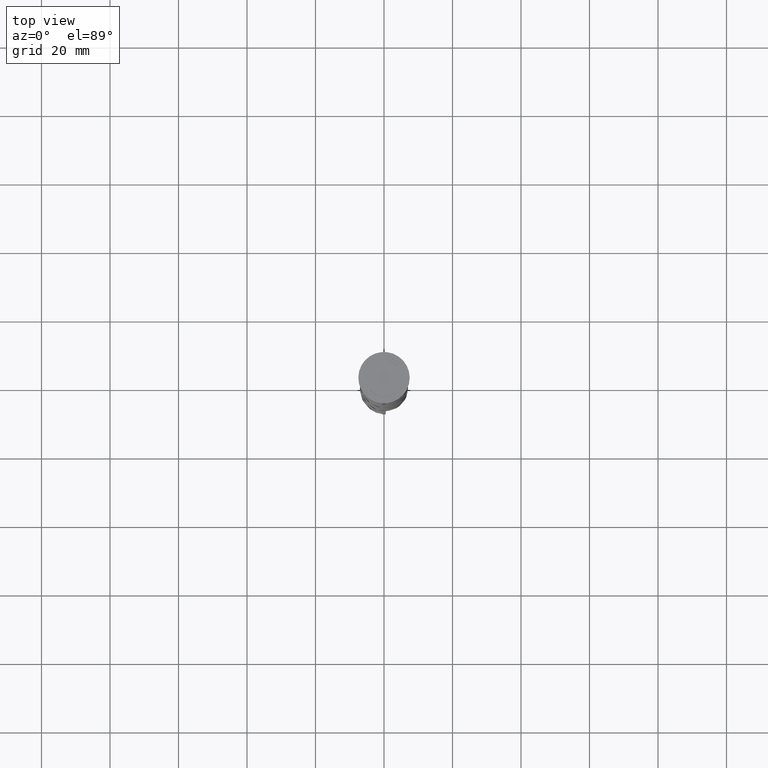
[diagram: clean part render]
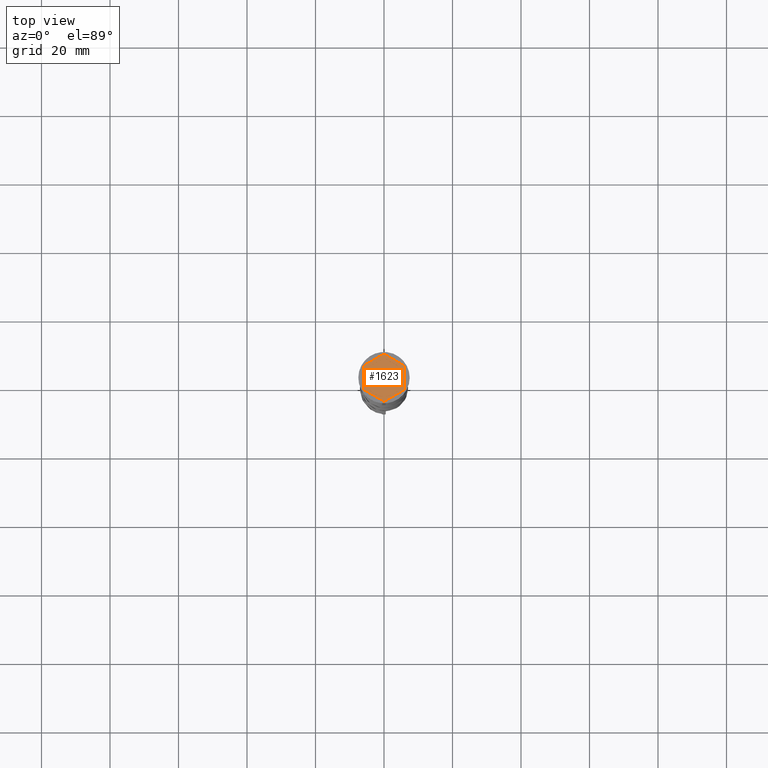
[diagram: same view with one face highlighted and labeled with its STEP entity id]
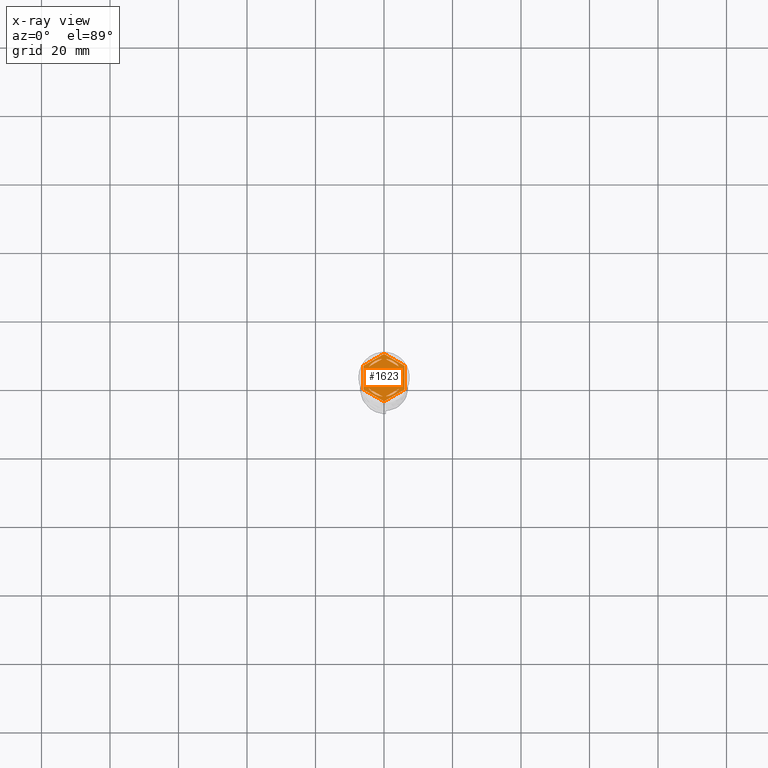
[diagram: x-ray of the same camera — body ghosted, the highlighted face saturated]
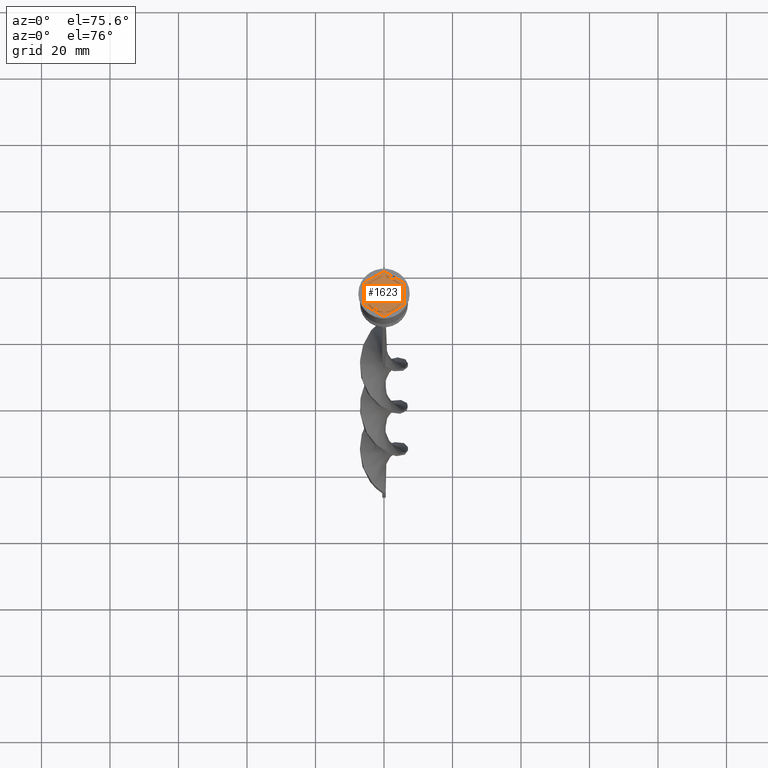
[diagram: same view with one face highlighted and labeled with its STEP entity id]
A machine part, top view. The second image highlights one B-rep face of the part: STEP entity #1623.
The next image is the same camera in x-ray: the body ghosted, the highlighted face saturated — about 0% of this face is hidden behind the body in this view.
A second angle (auxiliary view) of the same face is appended — the face is thin or edge-on in the first view.
In plain terms, the highlighted planar face has unit normal (0, 0, 1).
Its self-contained STEP definition (entity closure, byte-faithful):
#83 = DIRECTION ( 'NONE',  ( 0.000000000000000000, 0.000000000000000000, 1.000000000000000000 ) ) ;
#88 = VECTOR ( 'NONE', #759, 1000.000000000000227 ) ;
#96 = CARTESIAN_POINT ( 'NONE',  ( 0.000000000000000000, 6.928203230275506996, -1.000000000000000000 ) ) ;
#113 = LINE ( 'NONE', #2879, #1140 ) ;
#315 = ORIENTED_EDGE ( 'NONE', *, *, #1241, .F. ) ;
#327 = CARTESIAN_POINT ( 'NONE',  ( -5.000000000000000888, -2.291287847477921247, -1.000000000000000888 ) ) ;
#328 = AXIS2_PLACEMENT_3D ( 'NONE', #2137, #334, #2746 ) ;
#334 = DIRECTION ( 'NONE',  ( 0.000000000000000000, 0.000000000000000000, 1.000000000000000000 ) ) ;
#364 = ORIENTED_EDGE ( 'NONE', *, *, #1953, .F. ) ;
#418 = CARTESIAN_POINT ( 'NONE',  ( -0.5156865167015569629, 5.475770942661155161, -1.000000000000000888 ) ) ;
#425 = EDGE_CURVE ( 'NONE', #3022, #2754, #3845, .T. ) ;
#456 = AXIS2_PLACEMENT_3D ( 'NONE', #2052, #2962, #1470 ) ;
#467 = ORIENTED_EDGE ( 'NONE', *, *, #3056, .T. ) ;
#472 = CARTESIAN_POINT ( 'NONE',  ( -5.500000000000001776, 0.000000000000000000, -1.000000000000000000 ) ) ;
#479 = ORIENTED_EDGE ( 'NONE', *, *, #1861, .F. ) ;
#485 = CARTESIAN_POINT ( 'NONE',  ( 4.484313483298445036, -3.184483095183233026, -1.000000000000000888 ) ) ;
#519 = CARTESIAN_POINT ( 'NONE',  ( -6.000000000000000000, 3.464101615137752166, -1.000000000000000000 ) ) ;
#537 = LINE ( 'NONE', #2943, #788 ) ;
#575 = AXIS2_PLACEMENT_3D ( 'NONE', #2817, #1293, #2191 ) ;
#601 = CARTESIAN_POINT ( 'NONE',  ( 4.999999999999999112, -2.886751345948130432, -1.000000000000000888 ) ) ;
#606 = CARTESIAN_POINT ( 'NONE',  ( 0.000000000000000000, 0.000000000000000000, -1.000000000000000000 ) ) ;
#646 = EDGE_CURVE ( 'NONE', #3760, #3652, #2175, .T. ) ;
#665 = CARTESIAN_POINT ( 'NONE',  ( 0.5156865167015596274, 5.475770942661155161, -1.000000000000000888 ) ) ;
#667 = VERTEX_POINT ( 'NONE', #1682 ) ;
#720 = EDGE_LOOP ( 'NONE', ( #479, #1884 ) ) ;
#745 = LINE ( 'NONE', #1689, #1646 ) ;
#759 = DIRECTION ( 'NONE',  ( 0.8660254037844385966, 0.5000000000000000000, 0.000000000000000000 ) ) ;
#788 = VECTOR ( 'NONE', #1596, 1000.000000000000114 ) ;
#801 = ORIENTED_EDGE ( 'NONE', *, *, #2931, .T. ) ;
#819 = FACE_BOUND ( 'NONE', #1038, .T. ) ;
#882 = DIRECTION ( 'NONE',  ( 0.8660254037844388186, -0.4999999999999997224, 0.000000000000000000 ) ) ;
#910 = VERTEX_POINT ( 'NONE', #1490 ) ;
#958 = CARTESIAN_POINT ( 'NONE',  ( -6.000000000000000000, 3.464101615137752166, -1.000000000000000000 ) ) ;
#959 = CARTESIAN_POINT ( 'NONE',  ( 0.000000000000000000, 0.000000000000000000, -1.000000000000000000 ) ) ;
#962 = CIRCLE ( 'NONE', #2778, 5.500000000000001776 ) ;
#1023 = DIRECTION ( 'NONE',  ( 2.503857664561932376E-16, 1.000000000000000000, 0.000000000000000000 ) ) ;
#1030 = AXIS2_PLACEMENT_3D ( 'NONE', #1592, #2180, #2424 ) ;
#1038 = EDGE_LOOP ( 'NONE', ( #2414, #1264, #1797 ) ) ;
#1044 = EDGE_LOOP ( 'NONE', ( #2678, #1800 ) ) ;
#1057 = EDGE_LOOP ( 'NONE', ( #1359, #364 ) ) ;
#1058 = EDGE_CURVE ( 'NONE', #2228, #2781, #1898, .T. ) ;
#1071 = CARTESIAN_POINT ( 'NONE',  ( -4.280685092543093048E-16, -6.928203230275507885, -1.000000000000000000 ) ) ;
#1076 = CARTESIAN_POINT ( 'NONE',  ( -6.000000000000000000, -3.464101615137755719, -1.000000000000000000 ) ) ;
#1102 = EDGE_CURVE ( 'NONE', #2781, #2228, #537, .T. ) ;
#1140 = VECTOR ( 'NONE', #1023, 1000.000000000000000 ) ;
#1142 = FACE_OUTER_BOUND ( 'NONE', #2878, .T. ) ;
#1154 = CARTESIAN_POINT ( 'NONE',  ( 5.000000000000000888, 2.886751345948130876, -1.000000000000000888 ) ) ;
#1172 = VERTEX_POINT ( 'NONE', #3334 ) ;
#1181 = FACE_BOUND ( 'NONE', #1057, .T. ) ;
#1210 = CARTESIAN_POINT ( 'NONE',  ( 4.999999999999999112, -2.291287847477924355, -1.000000000000000888 ) ) ;
#1215 = CARTESIAN_POINT ( 'NONE',  ( -6.000000000000000000, -3.464101615137755719, -1.000000000000000000 ) ) ;
#1241 = EDGE_CURVE ( 'NONE', #2754, #3022, #2788, .T. ) ;
#1264 = ORIENTED_EDGE ( 'NONE', *, *, #3881, .F. ) ;
#1293 = DIRECTION ( 'NONE',  ( 0.000000000000000000, 0.000000000000000000, 1.000000000000000000 ) ) ;
#1307 = VERTEX_POINT ( 'NONE', #1076 ) ;
#1346 = VERTEX_POINT ( 'NONE', #418 ) ;
#1354 = CARTESIAN_POINT ( 'NONE',  ( -5.000000000000000888, -2.886751345948129099, -1.000000000000000888 ) ) ;
#1359 = ORIENTED_EDGE ( 'NONE', *, *, #2449, .F. ) ;
#1377 = EDGE_CURVE ( 'NONE', #3385, #1346, #745, .T. ) ;
#1379 = CARTESIAN_POINT ( 'NONE',  ( -4.484313483298445036, 3.184483095183233470, -1.000000000000000888 ) ) ;
#1425 = DIRECTION ( 'NONE',  ( 1.000000000000000000, 0.000000000000000000, -0.000000000000000000 ) ) ;
#1445 = VECTOR ( 'NONE', #882, 1000.000000000000114 ) ;
#1467 = FACE_BOUND ( 'NONE', #3306, .T. ) ;
#1470 = DIRECTION ( 'NONE',  ( 1.000000000000000000, 0.000000000000000000, 0.000000000000000000 ) ) ;
#1482 = VERTEX_POINT ( 'NONE', #2224 ) ;
#1490 = CARTESIAN_POINT ( 'NONE',  ( -4.484313483298445036, -3.184483095183233470, -1.000000000000000888 ) ) ;
#1540 = CARTESIAN_POINT ( 'NONE',  ( 6.000000000000000000, 3.464101615137753942, -1.000000000000000000 ) ) ;
#1592 = CARTESIAN_POINT ( 'NONE',  ( 0.000000000000000000, 0.000000000000000000, -1.000000000000000000 ) ) ;
#1596 = DIRECTION ( 'NONE',  ( -0.8660254037844387076, -0.4999999999999997224, 0.000000000000000000 ) ) ;
#1623 = ADVANCED_FACE ( 'NONE', ( #1467, #3505, #2375, #1181, #819, #3583, #1142 ), #3288, .T. ) ;
#1646 = VECTOR ( 'NONE', #2586, 1000.000000000000000 ) ;
#1653 = LINE ( 'NONE', #1354, #2924 ) ;
#1655 = ORIENTED_EDGE ( 'NONE', *, *, #2695, .T. ) ;
#1682 = CARTESIAN_POINT ( 'NONE',  ( -5.000000000000000888, 2.291287847477921247, -1.000000000000000888 ) ) ;
#1689 = CARTESIAN_POINT ( 'NONE',  ( 4.336808689942017736E-16, 5.773502691896259087, -1.000000000000000888 ) ) ;
#1693 = EDGE_CURVE ( 'NONE', #3863, #2972, #2981, .T. ) ;
#1717 = LINE ( 'NONE', #1540, #3035 ) ;
#1794 = DIRECTION ( 'NONE',  ( 0.000000000000000000, 1.000000000000000000, 0.000000000000000000 ) ) ;
#1795 = EDGE_CURVE ( 'NONE', #3652, #1307, #1886, .T. ) ;
#1797 = ORIENTED_EDGE ( 'NONE', *, *, #2497, .F. ) ;
#1798 = DIRECTION ( 'NONE',  ( -3.004629197474317076E-16, -1.000000000000000000, 0.000000000000000000 ) ) ;
#1800 = ORIENTED_EDGE ( 'NONE', *, *, #3088, .F. ) ;
#1858 = CARTESIAN_POINT ( 'NONE',  ( 0.000000000000000000, 6.928203230275506996, -1.000000000000000000 ) ) ;
#1861 = EDGE_CURVE ( 'NONE', #1346, #3385, #2015, .T. ) ;
#1884 = ORIENTED_EDGE ( 'NONE', *, *, #1377, .F. ) ;
#1886 = LINE ( 'NONE', #958, #1903 ) ;
#1892 = VECTOR ( 'NONE', #3769, 1000.000000000000114 ) ;
#1898 = CIRCLE ( 'NONE', #456, 5.500000000000001776 ) ;
#1903 = VECTOR ( 'NONE', #2401, 1000.000000000000000 ) ;
#1910 = ORIENTED_EDGE ( 'NONE', *, *, #2067, .T. ) ;
#1948 = ORIENTED_EDGE ( 'NONE', *, *, #1102, .F. ) ;
#1953 = EDGE_CURVE ( 'NONE', #2942, #910, #1653, .T. ) ;
#1955 = VECTOR ( 'NONE', #3703, 1000.000000000000227 ) ;
#2015 = CIRCLE ( 'NONE', #328, 5.500000000000001776 ) ;
#2019 = ORIENTED_EDGE ( 'NONE', *, *, #1058, .F. ) ;
#2037 = VERTEX_POINT ( 'NONE', #472 ) ;
#2052 = CARTESIAN_POINT ( 'NONE',  ( 0.000000000000000000, 0.000000000000000000, -1.000000000000000000 ) ) ;
#2054 = LINE ( 'NONE', #3268, #2656 ) ;
#2055 = EDGE_LOOP ( 'NONE', ( #2019, #1948 ) ) ;
#2067 = EDGE_CURVE ( 'NONE', #1482, #2488, #3758, .T. ) ;
#2069 = DIRECTION ( 'NONE',  ( 0.000000000000000000, 0.000000000000000000, 1.000000000000000000 ) ) ;
#2102 = LINE ( 'NONE', #1215, #1445 ) ;
#2137 = CARTESIAN_POINT ( 'NONE',  ( 0.000000000000000000, 0.000000000000000000, -1.000000000000000000 ) ) ;
#2155 = DIRECTION ( 'NONE',  ( 0.000000000000000000, 0.000000000000000000, 1.000000000000000000 ) ) ;
#2175 = LINE ( 'NONE', #96, #1955 ) ;
#2180 = DIRECTION ( 'NONE',  ( 0.000000000000000000, 0.000000000000000000, 1.000000000000000000 ) ) ;
#2191 = DIRECTION ( 'NONE',  ( 1.000000000000000000, 0.000000000000000000, 0.000000000000000000 ) ) ;
#2224 = CARTESIAN_POINT ( 'NONE',  ( -4.280685092543093048E-16, -6.928203230275507885, -1.000000000000000000 ) ) ;
#2228 = VERTEX_POINT ( 'NONE', #3577 ) ;
#2364 = CARTESIAN_POINT ( 'NONE',  ( 5.000000000000000888, 2.291287847477922135, -1.000000000000000888 ) ) ;
#2375 = FACE_BOUND ( 'NONE', #2055, .T. ) ;
#2401 = DIRECTION ( 'NONE',  ( 0.000000000000000000, -1.000000000000000000, 0.000000000000000000 ) ) ;
#2414 = ORIENTED_EDGE ( 'NONE', *, *, #2683, .F. ) ;
#2424 = DIRECTION ( 'NONE',  ( 1.000000000000000000, 0.000000000000000000, 0.000000000000000000 ) ) ;
#2449 = EDGE_CURVE ( 'NONE', #910, #2942, #962, .T. ) ;
#2488 = VERTEX_POINT ( 'NONE', #3600 ) ;
#2497 = EDGE_CURVE ( 'NONE', #2037, #2545, #3026, .T. ) ;
#2545 = VERTEX_POINT ( 'NONE', #327 ) ;
#2586 = DIRECTION ( 'NONE',  ( 0.8660254037844385966, 0.5000000000000001110, -0.000000000000000000 ) ) ;
#2647 = CARTESIAN_POINT ( 'NONE',  ( 4.484313483298442371, 3.184483095183238355, -1.000000000000000888 ) ) ;
#2653 = AXIS2_PLACEMENT_3D ( 'NONE', #959, #83, #2784 ) ;
#2656 = VECTOR ( 'NONE', #1794, 1000.000000000000000 ) ;
#2660 = CARTESIAN_POINT ( 'NONE',  ( 0.000000000000000000, 0.000000000000000000, -1.000000000000000000 ) ) ;
#2678 = ORIENTED_EDGE ( 'NONE', *, *, #1693, .F. ) ;
#2683 = EDGE_CURVE ( 'NONE', #667, #2037, #2848, .T. ) ;
#2695 = EDGE_CURVE ( 'NONE', #2488, #1172, #113, .T. ) ;
#2746 = DIRECTION ( 'NONE',  ( 1.000000000000000000, 0.000000000000000000, 0.000000000000000000 ) ) ;
#2754 = VERTEX_POINT ( 'NONE', #2647 ) ;
#2778 = AXIS2_PLACEMENT_3D ( 'NONE', #3303, #3055, #3325 ) ;
#2781 = VERTEX_POINT ( 'NONE', #485 ) ;
#2784 = DIRECTION ( 'NONE',  ( 1.000000000000000000, 0.000000000000000000, 0.000000000000000000 ) ) ;
#2788 = CIRCLE ( 'NONE', #2653, 5.500000000000001776 ) ;
#2817 = CARTESIAN_POINT ( 'NONE',  ( 0.000000000000000000, 0.000000000000000000, -1.000000000000000000 ) ) ;
#2840 = DIRECTION ( 'NONE',  ( -0.8660254037844385966, 0.5000000000000001110, 0.000000000000000000 ) ) ;
#2848 = CIRCLE ( 'NONE', #575, 5.500000000000001776 ) ;
#2878 = EDGE_LOOP ( 'NONE', ( #801, #3395, #3092, #467, #1910, #1655 ) ) ;
#2879 = CARTESIAN_POINT ( 'NONE',  ( 5.999999999999998224, -3.464101615137753942, -1.000000000000000000 ) ) ;
#2924 = VECTOR ( 'NONE', #2840, 1000.000000000000000 ) ;
#2931 = EDGE_CURVE ( 'NONE', #1172, #3760, #1717, .T. ) ;
#2942 = VERTEX_POINT ( 'NONE', #2990 ) ;
#2943 = CARTESIAN_POINT ( 'NONE',  ( -1.734723475976807094E-15, -5.773502691896258199, -1.000000000000000888 ) ) ;
#2962 = DIRECTION ( 'NONE',  ( 0.000000000000000000, 0.000000000000000000, 1.000000000000000000 ) ) ;
#2972 = VERTEX_POINT ( 'NONE', #2364 ) ;
#2981 = CIRCLE ( 'NONE', #1030, 5.500000000000001776 ) ;
#2990 = CARTESIAN_POINT ( 'NONE',  ( -0.5156865167015569629, -5.475770942661155161, -1.000000000000000888 ) ) ;
#3022 = VERTEX_POINT ( 'NONE', #665 ) ;
#3026 = CIRCLE ( 'NONE', #3344, 5.500000000000001776 ) ;
#3035 = VECTOR ( 'NONE', #3593, 1000.000000000000000 ) ;
#3055 = DIRECTION ( 'NONE',  ( 0.000000000000000000, 0.000000000000000000, 1.000000000000000000 ) ) ;
#3056 = EDGE_CURVE ( 'NONE', #1307, #1482, #2102, .T. ) ;
#3088 = EDGE_CURVE ( 'NONE', #2972, #3863, #3318, .T. ) ;
#3092 = ORIENTED_EDGE ( 'NONE', *, *, #1795, .T. ) ;
#3187 = ORIENTED_EDGE ( 'NONE', *, *, #425, .F. ) ;
#3268 = CARTESIAN_POINT ( 'NONE',  ( -5.000000000000000888, 2.886751345948129099, -1.000000000000000888 ) ) ;
#3288 = PLANE ( 'NONE',  #3793 ) ;
#3303 = CARTESIAN_POINT ( 'NONE',  ( 0.000000000000000000, 0.000000000000000000, -1.000000000000000000 ) ) ;
#3306 = EDGE_LOOP ( 'NONE', ( #315, #3187 ) ) ;
#3318 = LINE ( 'NONE', #601, #3411 ) ;
#3325 = DIRECTION ( 'NONE',  ( 1.000000000000000000, 0.000000000000000000, 0.000000000000000000 ) ) ;
#3334 = CARTESIAN_POINT ( 'NONE',  ( 6.000000000000000000, 3.464101615137753942, -1.000000000000000000 ) ) ;
#3344 = AXIS2_PLACEMENT_3D ( 'NONE', #606, #2155, #3348 ) ;
#3348 = DIRECTION ( 'NONE',  ( 1.000000000000000000, 0.000000000000000000, 0.000000000000000000 ) ) ;
#3385 = VERTEX_POINT ( 'NONE', #1379 ) ;
#3395 = ORIENTED_EDGE ( 'NONE', *, *, #646, .T. ) ;
#3411 = VECTOR ( 'NONE', #1798, 1000.000000000000000 ) ;
#3505 = FACE_BOUND ( 'NONE', #1044, .T. ) ;
#3577 = CARTESIAN_POINT ( 'NONE',  ( 0.5156865167015526330, -5.475770942661155161, -1.000000000000000888 ) ) ;
#3583 = FACE_BOUND ( 'NONE', #720, .T. ) ;
#3593 = DIRECTION ( 'NONE',  ( -0.8660254037844387076, 0.4999999999999998335, 0.000000000000000000 ) ) ;
#3600 = CARTESIAN_POINT ( 'NONE',  ( 5.999999999999998224, -3.464101615137753942, -1.000000000000000000 ) ) ;
#3652 = VERTEX_POINT ( 'NONE', #519 ) ;
#3703 = DIRECTION ( 'NONE',  ( -0.8660254037844385966, -0.4999999999999998890, 0.000000000000000000 ) ) ;
#3758 = LINE ( 'NONE', #1071, #88 ) ;
#3760 = VERTEX_POINT ( 'NONE', #1858 ) ;
#3769 = DIRECTION ( 'NONE',  ( 0.8660254037844387076, -0.4999999999999998335, 0.000000000000000000 ) ) ;
#3793 = AXIS2_PLACEMENT_3D ( 'NONE', #2660, #2069, #1425 ) ;
#3845 = LINE ( 'NONE', #1154, #1892 ) ;
#3863 = VERTEX_POINT ( 'NONE', #1210 ) ;
#3881 = EDGE_CURVE ( 'NONE', #2545, #667, #2054, .T. ) ;